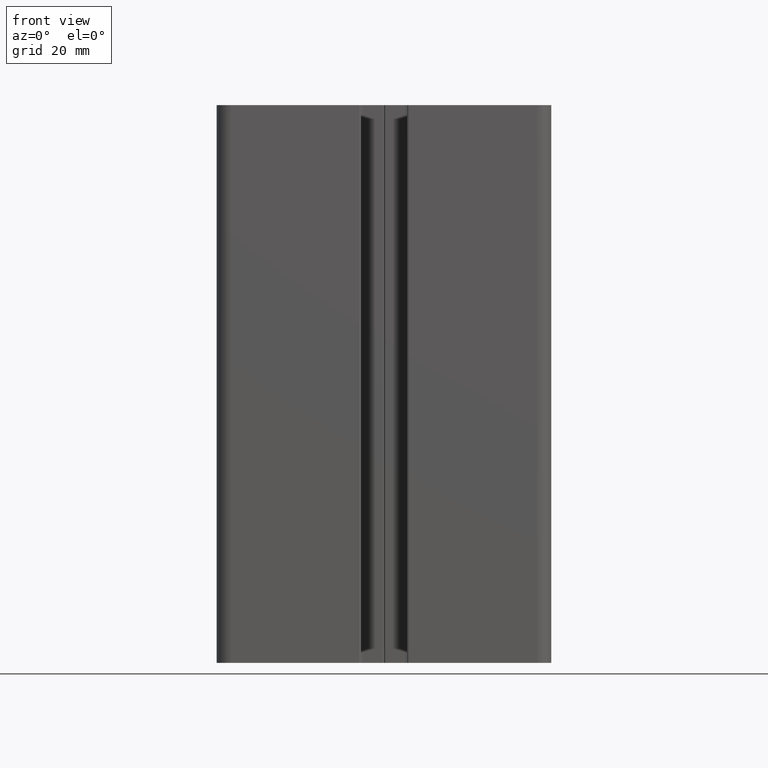
[diagram: clean part render]
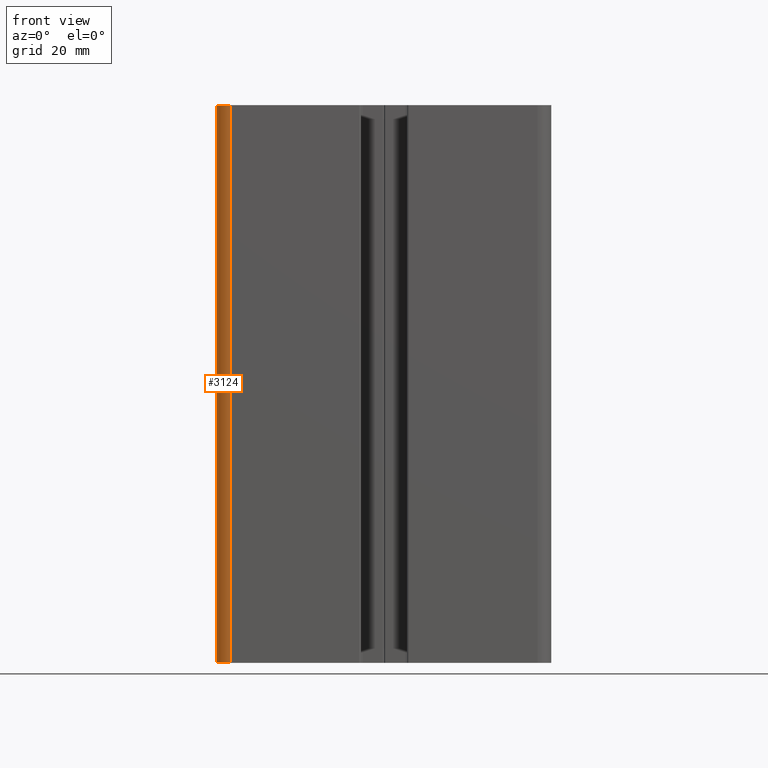
[diagram: same view with one face highlighted and labeled with its STEP entity id]
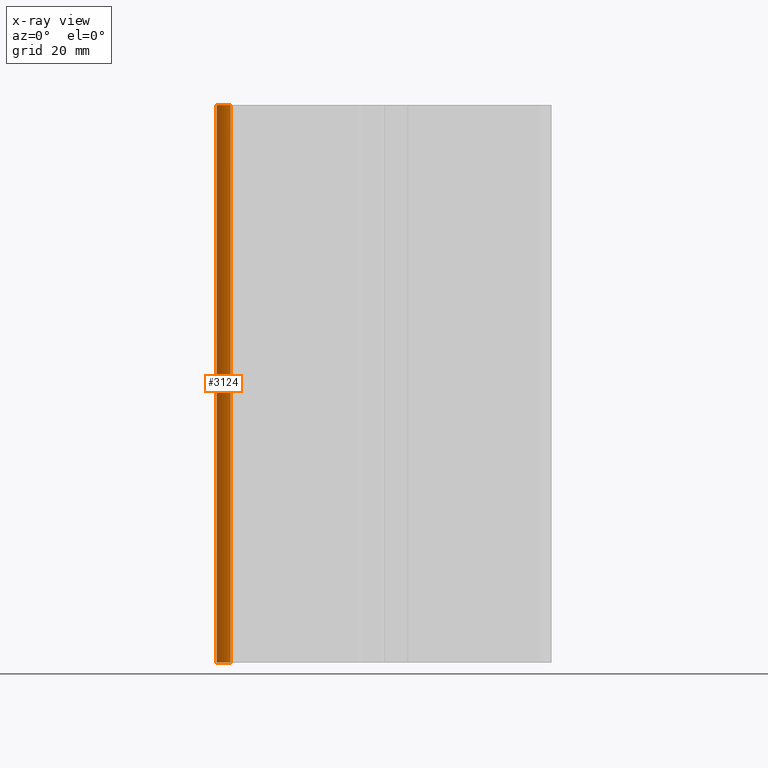
[diagram: x-ray of the same camera — body ghosted, the highlighted face saturated]
A machine part, front view. The second image highlights one B-rep face of the part: STEP entity #3124.
The next image is the same camera in x-ray: the body ghosted, the highlighted face saturated — about 0% of this face is hidden behind the body in this view.
In plain terms, the highlighted cylindrical surface (edge-blend (fillet) strip) has radius 2.5 mm, axis along (0, 0, 1).
Its self-contained STEP definition (entity closure, byte-faithful):
#124=CIRCLE('',#3376,2.50000000000001);
#125=CIRCLE('',#3377,2.50000000000001);
#233=CYLINDRICAL_SURFACE('',#3375,2.50000000000001);
#349=FACE_OUTER_BOUND('',#509,.T.);
#509=EDGE_LOOP('',(#2352,#2353,#2354,#2355));
#763=LINE('',#4964,#1079);
#764=LINE('',#4970,#1080);
#1079=VECTOR('',#4025,100.);
#1080=VECTOR('',#4032,100.);
#1402=VERTEX_POINT('',#4960);
#1403=VERTEX_POINT('',#4962);
#1404=VERTEX_POINT('',#4966);
#1405=VERTEX_POINT('',#4968);
#1799=EDGE_CURVE('',#1402,#1403,#763,.T.);
#1800=EDGE_CURVE('',#1402,#1404,#124,.T.);
#1801=EDGE_CURVE('',#1405,#1403,#125,.T.);
#1802=EDGE_CURVE('',#1404,#1405,#764,.T.);
#2352=ORIENTED_EDGE('',*,*,#1800,.F.);
#2353=ORIENTED_EDGE('',*,*,#1799,.T.);
#2354=ORIENTED_EDGE('',*,*,#1801,.F.);
#2355=ORIENTED_EDGE('',*,*,#1802,.F.);
#3124=ADVANCED_FACE('',(#349),#233,.T.);
#3375=AXIS2_PLACEMENT_3D('',#4965,#4026,#4027);
#3376=AXIS2_PLACEMENT_3D('',#4967,#4028,#4029);
#3377=AXIS2_PLACEMENT_3D('',#4969,#4030,#4031);
#4025=DIRECTION('',(0.,0.,1.));
#4026=DIRECTION('center_axis',(0.,0.,1.));
#4027=DIRECTION('ref_axis',(1.,0.,0.));
#4028=DIRECTION('center_axis',(0.,0.,-1.));
#4029=DIRECTION('ref_axis',(1.,0.,0.));
#4030=DIRECTION('center_axis',(0.,0.,1.));
#4031=DIRECTION('ref_axis',(1.,0.,0.));
#4032=DIRECTION('',(0.,0.,1.));
#4960=CARTESIAN_POINT('',(-27.5,-30.0000000000003,0.));
#4962=CARTESIAN_POINT('',(-27.5,-30.0000000000003,100.));
#4964=CARTESIAN_POINT('',(-27.5,-30.0000000000003,0.));
#4965=CARTESIAN_POINT('Origin',(-27.5,-27.5000000000003,0.));
#4966=CARTESIAN_POINT('',(-30.,-27.5000000000003,0.));
#4967=CARTESIAN_POINT('Origin',(-27.5,-27.5000000000003,0.));
#4968=CARTESIAN_POINT('',(-30.,-27.5000000000003,100.));
#4969=CARTESIAN_POINT('Origin',(-27.5,-27.5000000000003,100.));
#4970=CARTESIAN_POINT('',(-30.,-27.5000000000003,0.));